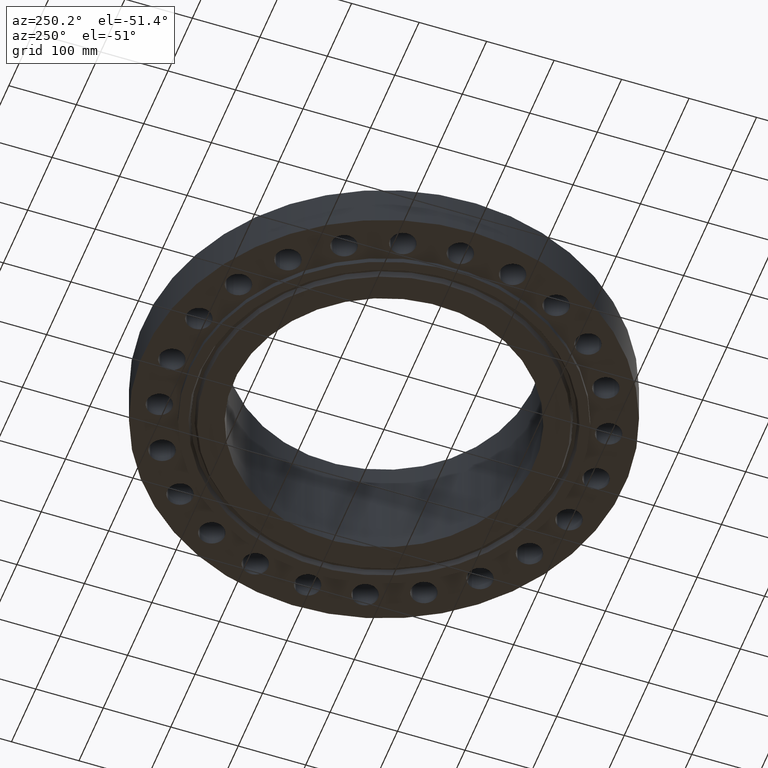
[diagram: clean part render]
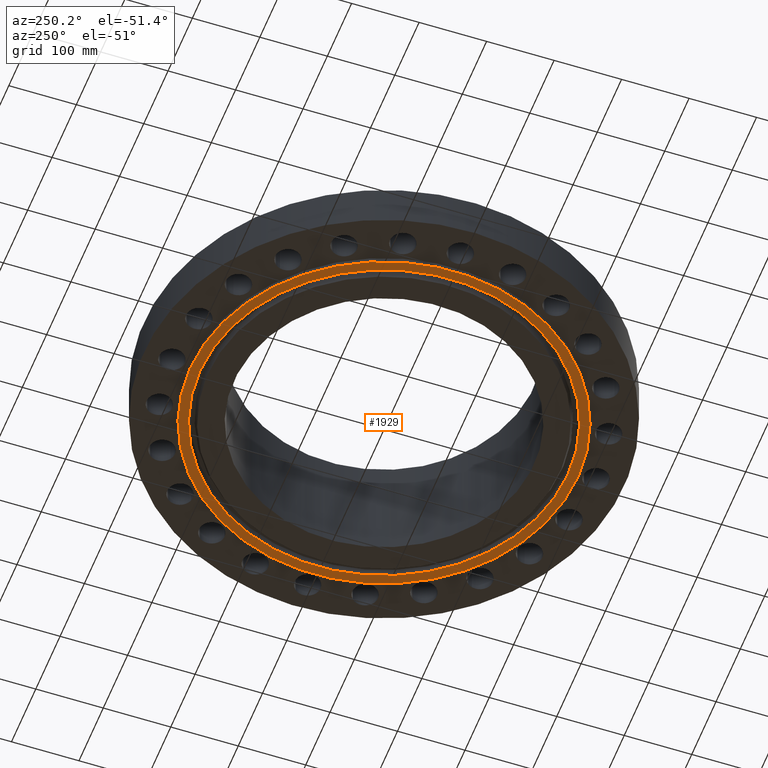
[diagram: same view with one face highlighted and labeled with its STEP entity id]
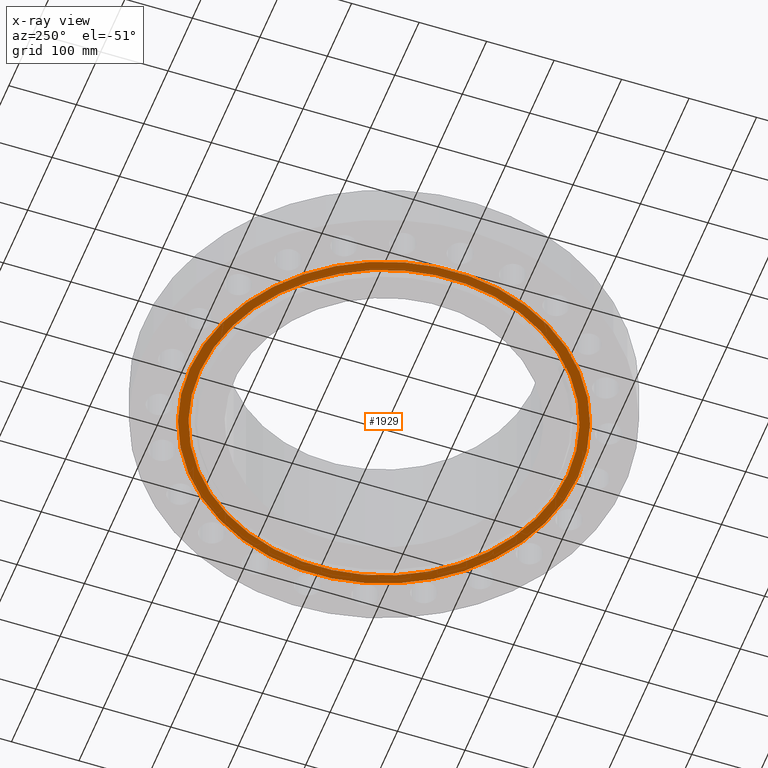
[diagram: x-ray of the same camera — body ghosted, the highlighted face saturated]
A machine part, auxiliary view. The second image highlights one B-rep face of the part: STEP entity #1929.
The next image is the same camera in x-ray: the body ghosted, the highlighted face saturated — about 0% of this face is hidden behind the body in this view.
In plain terms, the highlighted planar face has unit normal (0, 0, -1).
Its self-contained STEP definition (entity closure, byte-faithful):
#431=AXIS2_PLACEMENT_3D('Circle Axis2P3D',#429,#430,$) ;
#466=AXIS2_PLACEMENT_3D('Circle Axis2P3D',#464,#465,$) ;
#1905=AXIS2_PLACEMENT_3D('Plane Axis2P3D',#1902,#1903,#1904) ;
#1913=AXIS2_PLACEMENT_3D('Circle Axis2P3D',#1911,#1912,$) ;
#1922=AXIS2_PLACEMENT_3D('Circle Axis2P3D',#1920,#1921,$) ;
#429=CARTESIAN_POINT('Axis2P3D Location',(0.,0.,-0.313000000001)) ;
#433=CARTESIAN_POINT('Vertex',(-5.42350140548,-9.92765273142,-0.313000000001)) ;
#435=CARTESIAN_POINT('Vertex',(5.42350140548,9.92765273142,-0.313000000001)) ;
#464=CARTESIAN_POINT('Axis2P3D Location',(0.,0.,-0.313000000001)) ;
#1902=CARTESIAN_POINT('Axis2P3D Location',(0.,8.75000000003,-0.313000000001)) ;
#1911=CARTESIAN_POINT('Axis2P3D Location',(-8.39223703654E-016,1.1189649382E-015,-0.313000000001)) ;
#1915=CARTESIAN_POINT('Vertex',(5.14639344417,-9.42041001065,-0.313000000001)) ;
#1917=CARTESIAN_POINT('Vertex',(-5.14639344417,9.42041001065,-0.313000000001)) ;
#1920=CARTESIAN_POINT('Axis2P3D Location',(-8.39223703654E-016,-1.1189649382E-015,-0.313000000001)) ;
#430=DIRECTION('Axis2P3D Direction',(0.,0.,-0.0393700787402)) ;
#465=DIRECTION('Axis2P3D Direction',(0.,0.,-0.0393700787402)) ;
#1903=DIRECTION('Axis2P3D Direction',(0.,0.,-0.0393700787402)) ;
#1904=DIRECTION('Axis2P3D XDirection',(0.0393700787402,0.,0.)) ;
#1912=DIRECTION('Axis2P3D Direction',(0.,0.,-0.0393700787402)) ;
#1921=DIRECTION('Axis2P3D Direction',(0.,0.,-0.0393700787402)) ;
#1908=ORIENTED_EDGE('',*,*,#437,.T.) ;
#1909=ORIENTED_EDGE('',*,*,#468,.T.) ;
#1926=ORIENTED_EDGE('',*,*,#1919,.F.) ;
#1927=ORIENTED_EDGE('',*,*,#1924,.F.) ;
#1928=FACE_BOUND('',#1925,.T.) ;
#1929=ADVANCED_FACE('PartBody',(#1910,#1928),#1906,.T.) ;
#432=CIRCLE('generated circle',#431,11.3125) ;
#467=CIRCLE('generated circle',#466,11.3125) ;
#1914=CIRCLE('generated circle',#1913,10.7345) ;
#1923=CIRCLE('generated circle',#1922,10.7345) ;
#437=EDGE_CURVE('',#434,#436,#432,.T.) ;
#468=EDGE_CURVE('',#436,#434,#467,.T.) ;
#1919=EDGE_CURVE('',#1916,#1918,#1914,.T.) ;
#1924=EDGE_CURVE('',#1918,#1916,#1923,.T.) ;
#1907=EDGE_LOOP('',(#1908,#1909)) ;
#1925=EDGE_LOOP('',(#1926,#1927)) ;
#1910=FACE_OUTER_BOUND('',#1907,.T.) ;
#1906=PLANE('',#1905) ;
#434=VERTEX_POINT('',#433) ;
#436=VERTEX_POINT('',#435) ;
#1916=VERTEX_POINT('',#1915) ;
#1918=VERTEX_POINT('',#1917) ;